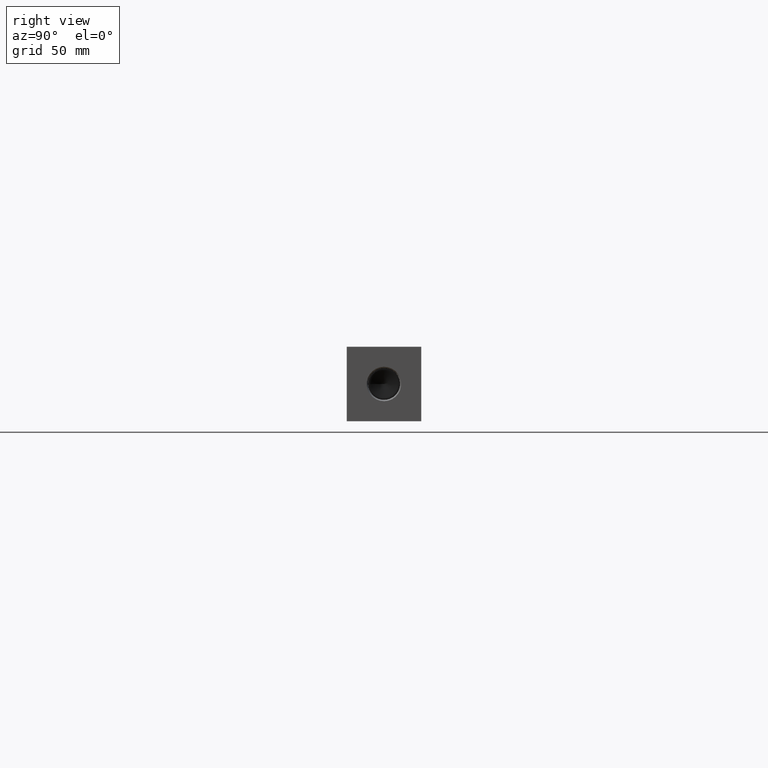
[diagram: clean part render]
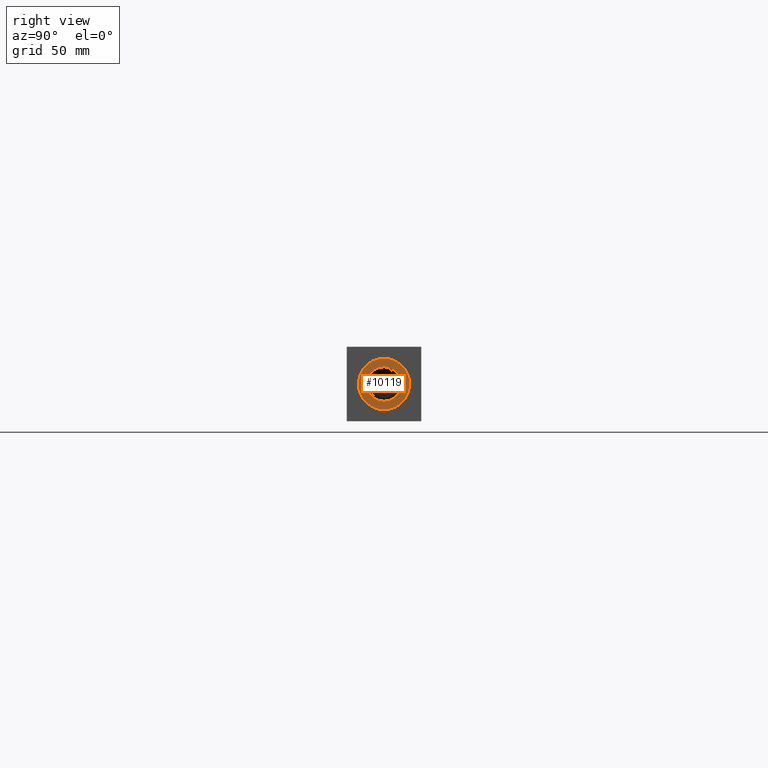
[diagram: same view with one face highlighted and labeled with its STEP entity id]
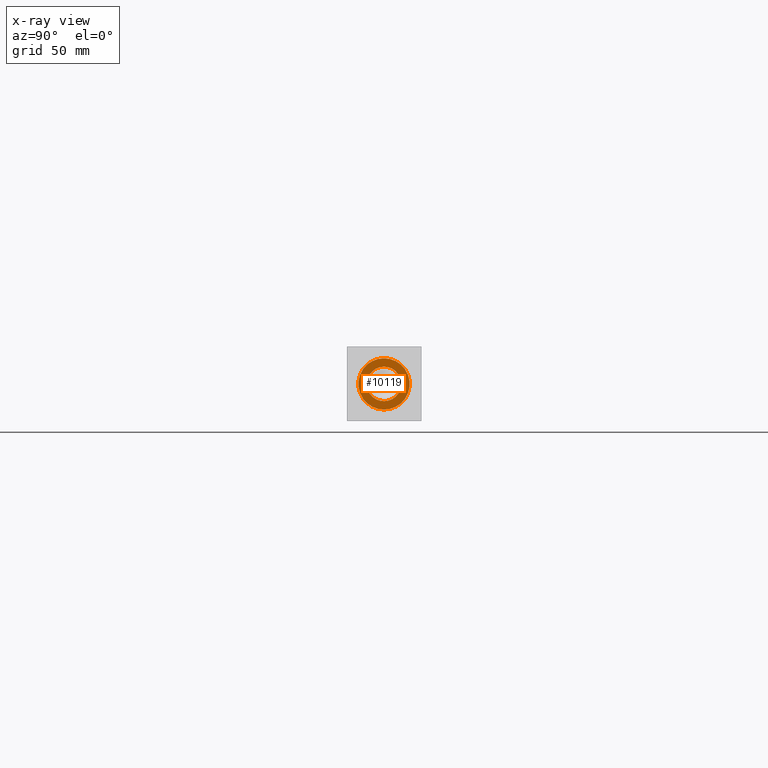
[diagram: x-ray of the same camera — body ghosted, the highlighted face saturated]
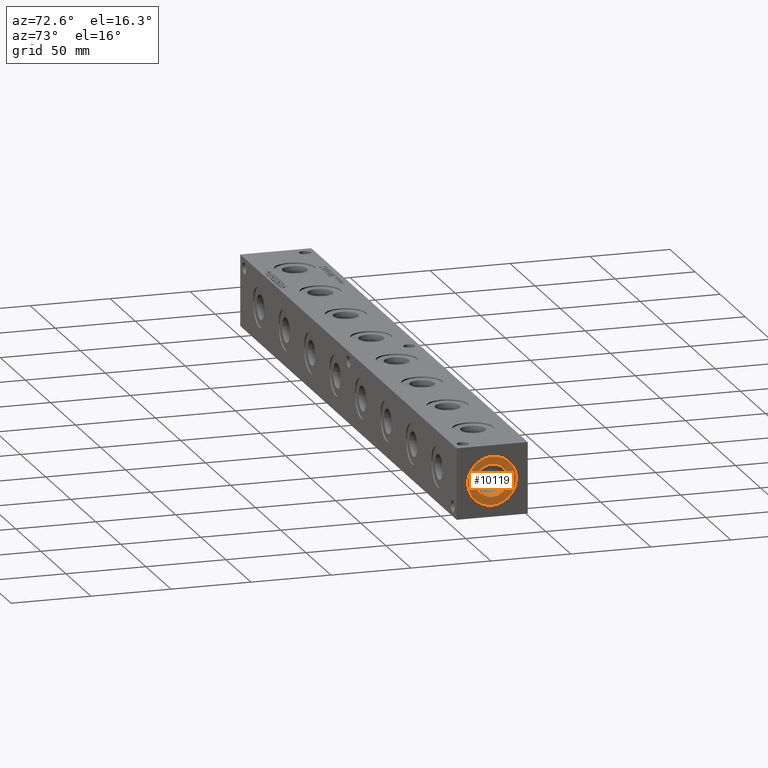
[diagram: same view with one face highlighted and labeled with its STEP entity id]
A machine part, right view. The second image highlights one B-rep face of the part: STEP entity #10119.
The next image is the same camera in x-ray: the body ghosted, the highlighted face saturated — about 0% of this face is hidden behind the body in this view.
A second angle (auxiliary view) of the same face is appended — the face is thin or edge-on in the first view.
In plain terms, the highlighted planar face has unit normal (-1, 0, 0).
Its self-contained STEP definition (entity closure, byte-faithful):
#494=CIRCLE('',#10848,15.3162);
#495=CIRCLE('',#10849,15.3162);
#496=CIRCLE('',#10851,10.2997);
#497=CIRCLE('',#10852,10.2997);
#596=FACE_BOUND('',#1951,.T.);
#844=PLANE('',#10850);
#1354=FACE_OUTER_BOUND('',#1950,.T.);
#1950=EDGE_LOOP('',(#9044,#9045));
#1951=EDGE_LOOP('',(#9046,#9047));
#4812=VERTEX_POINT('',#18100);
#4813=VERTEX_POINT('',#18102);
#4814=VERTEX_POINT('',#18106);
#4815=VERTEX_POINT('',#18107);
#6241=EDGE_CURVE('',#4812,#4813,#494,.T.);
#6242=EDGE_CURVE('',#4813,#4812,#495,.T.);
#6243=EDGE_CURVE('',#4814,#4815,#496,.T.);
#6244=EDGE_CURVE('',#4815,#4814,#497,.T.);
#9044=ORIENTED_EDGE('',*,*,#6242,.F.);
#9045=ORIENTED_EDGE('',*,*,#6241,.F.);
#9046=ORIENTED_EDGE('',*,*,#6243,.T.);
#9047=ORIENTED_EDGE('',*,*,#6244,.T.);
#10119=ADVANCED_FACE('',(#1354,#596),#844,.F.);
#10848=AXIS2_PLACEMENT_3D('',#18103,#13039,#13040);
#10849=AXIS2_PLACEMENT_3D('',#18104,#13041,#13042);
#10850=AXIS2_PLACEMENT_3D('',#18105,#13043,#13044);
#10851=AXIS2_PLACEMENT_3D('',#18108,#13045,#13046);
#10852=AXIS2_PLACEMENT_3D('',#18109,#13047,#13048);
#13039=DIRECTION('center_axis',(-1.,0.,0.));
#13040=DIRECTION('ref_axis',(0.,0.,1.));
#13041=DIRECTION('center_axis',(-1.,0.,0.));
#13042=DIRECTION('ref_axis',(0.,0.,1.));
#13043=DIRECTION('center_axis',(-1.,0.,0.));
#13044=DIRECTION('ref_axis',(0.,0.,1.));
#13045=DIRECTION('center_axis',(-1.,0.,0.));
#13046=DIRECTION('ref_axis',(0.,0.,1.));
#13047=DIRECTION('center_axis',(-1.,0.,0.));
#13048=DIRECTION('ref_axis',(0.,0.,1.));
#18100=CARTESIAN_POINT('',(431.0126,22.225,37.5412));
#18102=CARTESIAN_POINT('',(431.0126,22.225,6.9088));
#18103=CARTESIAN_POINT('Origin',(431.0126,22.225,22.225));
#18104=CARTESIAN_POINT('Origin',(431.0126,22.225,22.225));
#18105=CARTESIAN_POINT('Origin',(431.0126,22.225,11.9253));
#18106=CARTESIAN_POINT('',(431.0126,22.225,11.9253));
#18107=CARTESIAN_POINT('',(431.0126,22.225,32.5247));
#18108=CARTESIAN_POINT('Origin',(431.0126,22.225,22.225));
#18109=CARTESIAN_POINT('Origin',(431.0126,22.225,22.225));